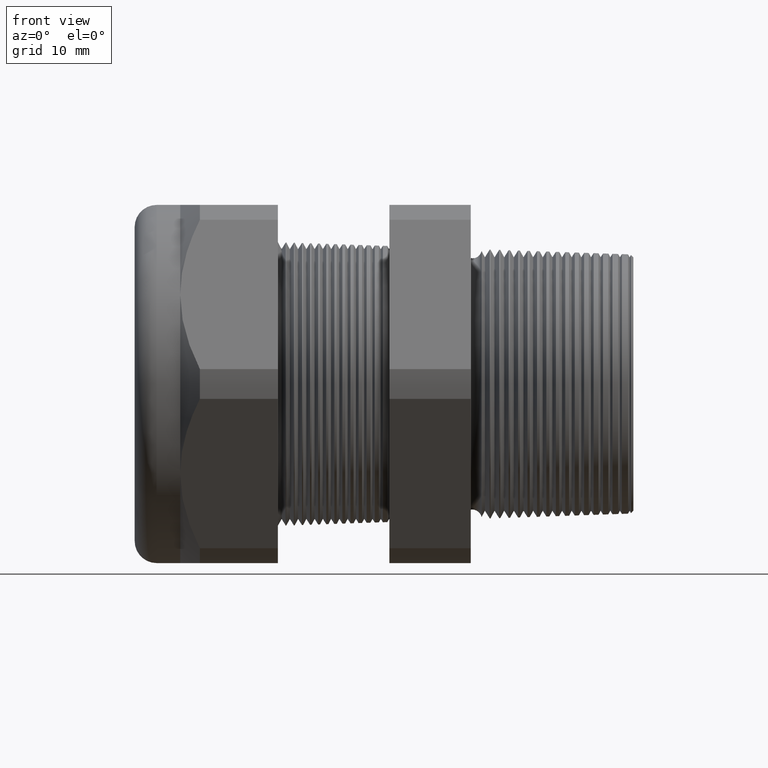
[diagram: clean part render]
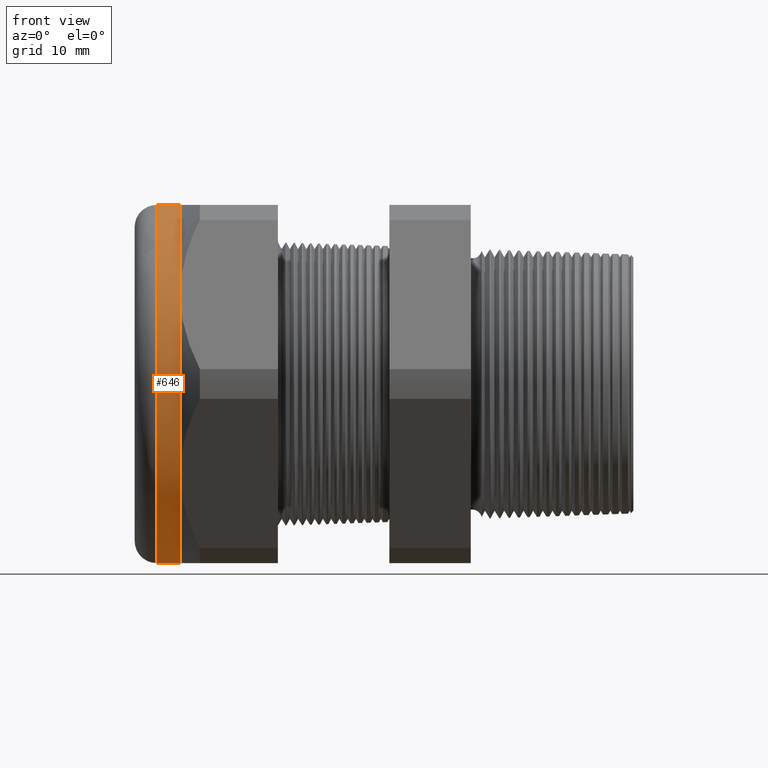
[diagram: same view with one face highlighted and labeled with its STEP entity id]
A machine part, front view. The second image highlights one B-rep face of the part: STEP entity #646.
In plain terms, the highlighted cylindrical surface (partial cylindrical patch) has radius 16.51 mm, axis along (1, 0, 0).
Its self-contained STEP definition (entity closure, byte-faithful):
#538 = VERTEX_POINT ( 'NONE', #2384 ) ;
#542 = VERTEX_POINT ( 'NONE', #2436 ) ;
#646 = ADVANCED_FACE ( 'NONE', ( #2594 ), #2593, .T. ) ;
#647 = EDGE_LOOP ( 'NONE', ( #648, #701, #703, #704, #706, #708 ) ) ;
#648 = ORIENTED_EDGE ( 'NONE', *, *, #3677, .F. ) ;
#701 = ORIENTED_EDGE ( 'NONE', *, *, #702, .T. ) ;
#702 = EDGE_CURVE ( 'NONE', #3642, #3643, #2751, .T. ) ;
#703 = ORIENTED_EDGE ( 'NONE', *, *, #3755, .T. ) ;
#704 = ORIENTED_EDGE ( 'NONE', *, *, #705, .F. ) ;
#705 = EDGE_CURVE ( 'NONE', #538, #3671, #2746, .T. ) ;
#706 = ORIENTED_EDGE ( 'NONE', *, *, #707, .F. ) ;
#707 = EDGE_CURVE ( 'NONE', #542, #538, #2740, .T. ) ;
#708 = ORIENTED_EDGE ( 'NONE', *, *, #709, .F. ) ;
#709 = EDGE_CURVE ( 'NONE', #3676, #542, #2735, .T. ) ;
#2384 = CARTESIAN_POINT ( 'NONE',  ( -1.364645669291338500, -0.5629165124598851700, -0.3250000000000002900 ) ) ;
#2436 = CARTESIAN_POINT ( 'NONE',  ( -1.364645669291338500, -0.5629165124598855000, 0.3249999999999999600 ) ) ;
#2592 = CARTESIAN_POINT ( 'NONE',  ( 0.0000000000000000000, 0.0000000000000000000, 0.0000000000000000000 ) ) ;
#2593 = CYLINDRICAL_SURFACE ( 'NONE', #2654, 0.6500000000000001300 ) ;
#2594 = FACE_OUTER_BOUND ( 'NONE', #647, .T. ) ;
#2652 = DIRECTION ( 'NONE',  ( 0.0000000000000000000, 0.0000000000000000000, -1.000000000000000000 ) ) ;
#2653 = DIRECTION ( 'NONE',  ( 1.000000000000000000, 0.0000000000000000000, 0.0000000000000000000 ) ) ;
#2654 = AXIS2_PLACEMENT_3D ( 'NONE', #2592, #2653, #2652 ) ;
#2731 = DIRECTION ( 'NONE',  ( 0.0000000000000000000, 0.0000000000000000000, -1.000000000000000000 ) ) ;
#2732 = DIRECTION ( 'NONE',  ( 1.000000000000000000, 0.0000000000000000000, 0.0000000000000000000 ) ) ;
#2733 = CARTESIAN_POINT ( 'NONE',  ( -1.364645669291338500, 0.0000000000000000000, 0.0000000000000000000 ) ) ;
#2734 = AXIS2_PLACEMENT_3D ( 'NONE', #2733, #2732, #2731 ) ;
#2735 = CIRCLE ( 'NONE', #2734, 0.6500000000000001300 ) ;
#2736 = DIRECTION ( 'NONE',  ( 0.0000000000000000000, 0.0000000000000000000, -1.000000000000000000 ) ) ;
#2737 = DIRECTION ( 'NONE',  ( 1.000000000000000000, 0.0000000000000000000, 0.0000000000000000000 ) ) ;
#2738 = CARTESIAN_POINT ( 'NONE',  ( -1.364645669291338500, 0.0000000000000000000, 0.0000000000000000000 ) ) ;
#2739 = AXIS2_PLACEMENT_3D ( 'NONE', #2738, #2737, #2736 ) ;
#2740 = CIRCLE ( 'NONE', #2739, 0.6500000000000001300 ) ;
#2741 = DIRECTION ( 'NONE',  ( 0.0000000000000000000, 0.0000000000000000000, -1.000000000000000000 ) ) ;
#2742 = DIRECTION ( 'NONE',  ( 1.000000000000000000, 0.0000000000000000000, 0.0000000000000000000 ) ) ;
#2743 = CARTESIAN_POINT ( 'NONE',  ( -1.364645669291338500, 0.0000000000000000000, 0.0000000000000000000 ) ) ;
#2744 = AXIS2_PLACEMENT_3D ( 'NONE', #2743, #2742, #2741 ) ;
#2746 = CIRCLE ( 'NONE', #2744, 0.6500000000000001300 ) ;
#2747 = DIRECTION ( 'NONE',  ( 0.0000000000000000000, 0.0000000000000000000, 1.000000000000000000 ) ) ;
#2748 = DIRECTION ( 'NONE',  ( 1.000000000000000000, 0.0000000000000000000, 0.0000000000000000000 ) ) ;
#2749 = CARTESIAN_POINT ( 'NONE',  ( -1.450000000000000400, 0.0000000000000000000, 0.0000000000000000000 ) ) ;
#2750 = AXIS2_PLACEMENT_3D ( 'NONE', #2749, #2748, #2747 ) ;
#2751 = CIRCLE ( 'NONE', #2750, 0.6500000000000001300 ) ;
#3642 = VERTEX_POINT ( 'NONE', #4691 ) ;
#3643 = VERTEX_POINT ( 'NONE', #4690 ) ;
#3671 = VERTEX_POINT ( 'NONE', #4765 ) ;
#3676 = VERTEX_POINT ( 'NONE', #4758 ) ;
#3677 = EDGE_CURVE ( 'NONE', #3642, #3676, #4757, .T. ) ;
#3755 = EDGE_CURVE ( 'NONE', #3643, #3671, #4887, .T. ) ;
#4690 = CARTESIAN_POINT ( 'NONE',  ( -1.450000000000000400, 0.0000000000000000000, -0.6500000000000001300 ) ) ;
#4691 = CARTESIAN_POINT ( 'NONE',  ( -1.450000000000000400, 7.960204194457797900E-017, 0.6500000000000001300 ) ) ;
#4754 = DIRECTION ( 'NONE',  ( 1.000000000000000000, 0.0000000000000000000, 0.0000000000000000000 ) ) ;
#4755 = VECTOR ( 'NONE', #4754, 39.37007874015748100 ) ;
#4756 = CARTESIAN_POINT ( 'NONE',  ( 0.0000000000000000000, 7.960204194457797900E-017, 0.6500000000000001300 ) ) ;
#4757 = LINE ( 'NONE', #4756, #4755 ) ;
#4758 = CARTESIAN_POINT ( 'NONE',  ( -1.364645669291338500, 0.0000000000000000000, 0.6499999999999999100 ) ) ;
#4765 = CARTESIAN_POINT ( 'NONE',  ( -1.364645669291338500, 0.0000000000000000000, -0.6500000000000001300 ) ) ;
#4879 = DIRECTION ( 'NONE',  ( 1.000000000000000000, 0.0000000000000000000, 0.0000000000000000000 ) ) ;
#4880 = VECTOR ( 'NONE', #4879, 39.37007874015748100 ) ;
#4881 = CARTESIAN_POINT ( 'NONE',  ( 0.0000000000000000000, 0.0000000000000000000, -0.6500000000000001300 ) ) ;
#4887 = LINE ( 'NONE', #4881, #4880 ) ;